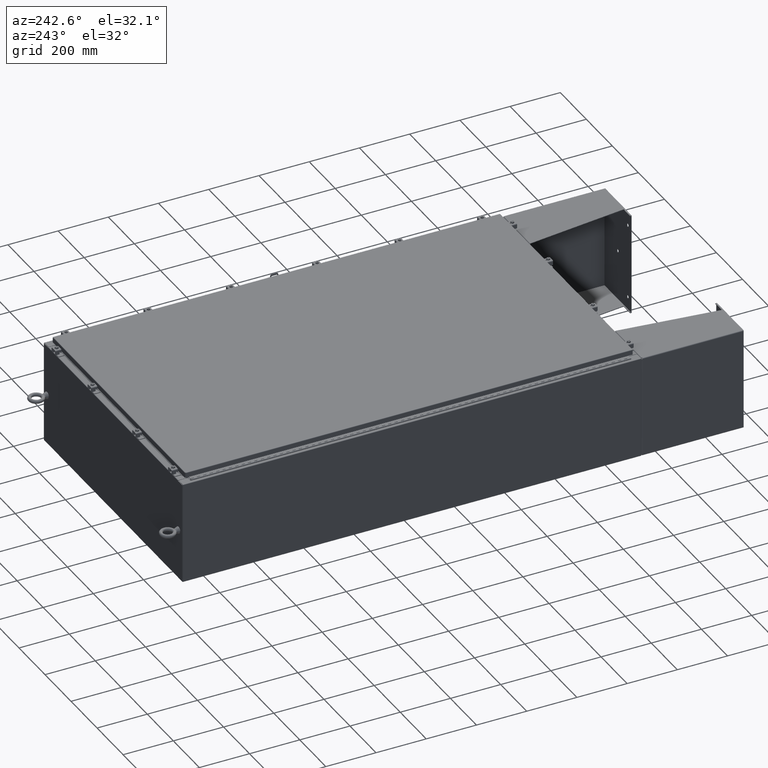
[diagram: clean part render]
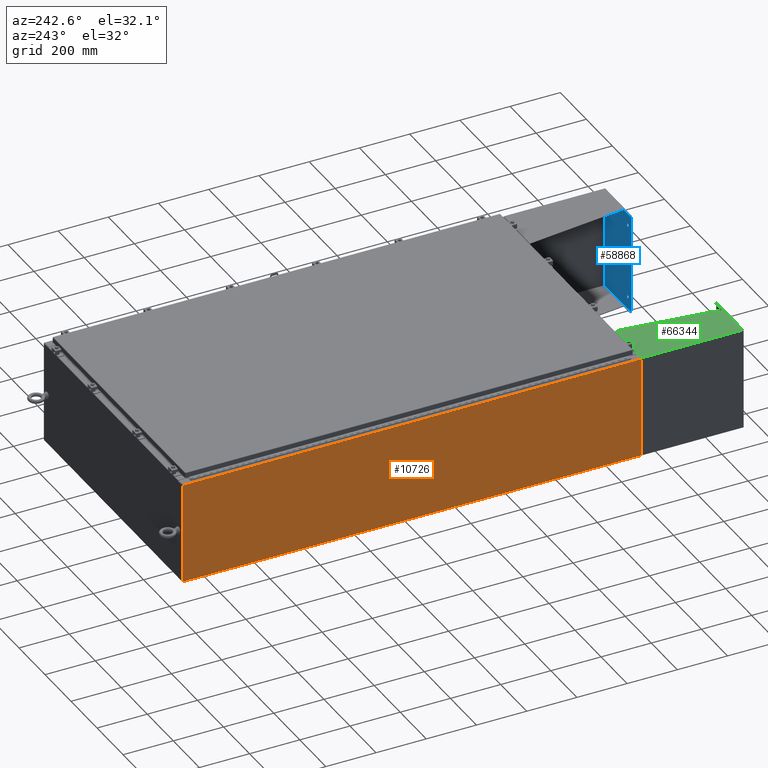
[diagram: same view with three faces highlighted in distinct colors, each labeled with its STEP entity id]
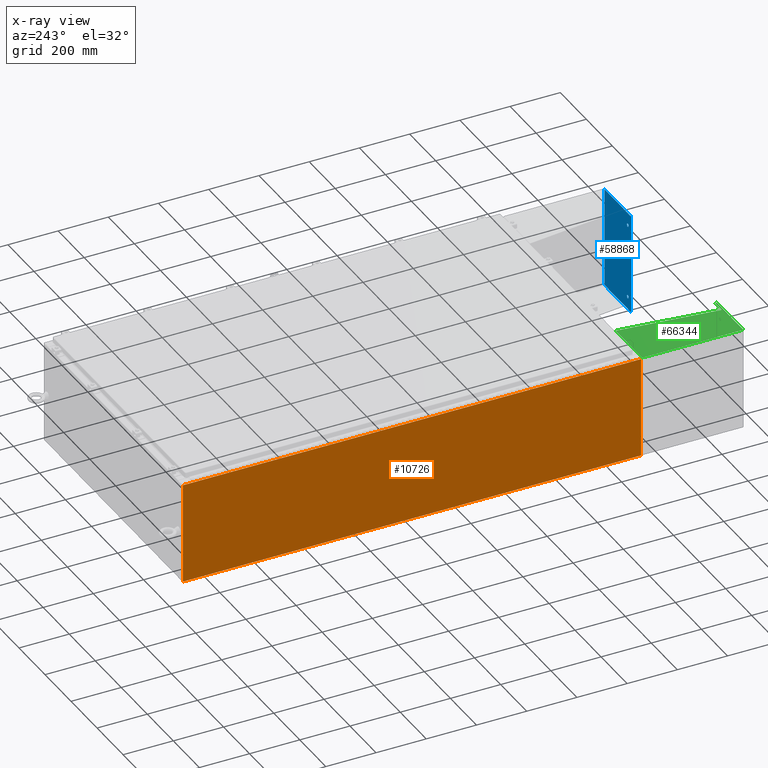
[diagram: x-ray of the same camera — body ghosted, the three highlighted faces saturated]
A machine part, auxiliary view with three faces highlighted in distinct colors.
The next image is the same camera in x-ray (body ghosted, the three faces saturated) — at least one of them is partly hidden behind the body in this view.
Their STEP definitions:

[orange] entity #10726 — the highlighted planar face has unit normal (1, 0, 0).
#34 = CARTESIAN_POINT ( 'NONE',  ( -21.00000000000005300, 35.92530000000000000, 15.83759999999999700 ) ) ;
#159 = CARTESIAN_POINT ( 'NONE',  ( -20.99999999999999600, 35.92530000000000000, -7.519008994170480900E-014 ) ) ;
#1633 = DIRECTION ( 'NONE',  ( -3.568060775509201500E-015, 0.0000000000000000000, 1.000000000000000000 ) ) ;
#2897 = EDGE_CURVE ( 'NONE', #52754, #73051, #76560, .T. ) ;
#3341 = CARTESIAN_POINT ( 'NONE',  ( -21.00000000000005700, -35.92530000000000000, 15.83759999999999700 ) ) ;
#4849 = EDGE_LOOP ( 'NONE', ( #34038, #58235, #11112, #47210 ) ) ;
#5665 = VECTOR ( 'NONE', #1633, 39.37007874015748100 ) ;
#7684 = CARTESIAN_POINT ( 'NONE',  ( -20.99999999999999600, -35.92529999999999300, -7.519008994170480900E-014 ) ) ;
#7936 = EDGE_CURVE ( 'NONE', #68617, #73051, #31280, .T. ) ;
#9164 = DIRECTION ( 'NONE',  ( 3.568060775509201500E-015, 0.0000000000000000000, -1.000000000000000000 ) ) ;
#9719 = FACE_OUTER_BOUND ( 'NONE', #4849, .T. ) ;
#10726 = ADVANCED_FACE ( 'NONE', ( #9719 ), #58457, .F. ) ;
#11112 = ORIENTED_EDGE ( 'NONE', *, *, #2897, .F. ) ;
#12292 = CARTESIAN_POINT ( 'NONE',  ( -20.99999999999999600, 35.92530000000000000, 0.01299999999999766100 ) ) ;
#15548 = VECTOR ( 'NONE', #37843, 39.37007874015748100 ) ;
#18373 = VECTOR ( 'NONE', #44671, 39.37007874015748100 ) ;
#31280 = LINE ( 'NONE', #159, #15548 ) ;
#34038 = ORIENTED_EDGE ( 'NONE', *, *, #60671, .T. ) ;
#34056 = LINE ( 'NONE', #3341, #18373 ) ;
#35335 = CARTESIAN_POINT ( 'NONE',  ( -20.99999999999999600, 0.0000000000000000000, -7.519008994170480900E-014 ) ) ;
#37843 = DIRECTION ( 'NONE',  ( 3.568060775509201500E-015, -1.669686765996189800E-032, -1.000000000000000000 ) ) ;
#38567 = AXIS2_PLACEMENT_3D ( 'NONE', #35335, #66264, #9164 ) ;
#39975 = CARTESIAN_POINT ( 'NONE',  ( -21.00000000000005700, -35.92530000000000000, 15.83759999999999700 ) ) ;
#44671 = DIRECTION ( 'NONE',  ( 0.0000000000000000000, 1.000000000000000000, 0.0000000000000000000 ) ) ;
#45019 = VECTOR ( 'NONE', #54582, 39.37007874015748100 ) ;
#47210 = ORIENTED_EDGE ( 'NONE', *, *, #62614, .T. ) ;
#52754 = VERTEX_POINT ( 'NONE', #60445 ) ;
#54582 = DIRECTION ( 'NONE',  ( -7.711494716726880800E-046, 1.000000000000000000, -2.692453989803932300E-060 ) ) ;
#58235 = ORIENTED_EDGE ( 'NONE', *, *, #7936, .T. ) ;
#58457 = PLANE ( 'NONE',  #38567 ) ;
#60445 = CARTESIAN_POINT ( 'NONE',  ( -20.99999999999999600, -35.92530000000000000, 0.01299999999999766100 ) ) ;
#60671 = EDGE_CURVE ( 'NONE', #68451, #68617, #34056, .T. ) ;
#62614 = EDGE_CURVE ( 'NONE', #52754, #68451, #72164, .T. ) ;
#66013 = CARTESIAN_POINT ( 'NONE',  ( -20.99999999999999600, 35.92530000000000000, 0.01299999999999765100 ) ) ;
#66264 = DIRECTION ( 'NONE',  ( 1.000000000000000000, 7.711494716726880800E-046, 3.568060775509201500E-015 ) ) ;
#68451 = VERTEX_POINT ( 'NONE', #39975 ) ;
#68617 = VERTEX_POINT ( 'NONE', #34 ) ;
#72164 = LINE ( 'NONE', #7684, #5665 ) ;
#73051 = VERTEX_POINT ( 'NONE', #66013 ) ;
#76560 = LINE ( 'NONE', #12292, #45019 ) ;

[blue] entity #58868 — the highlighted planar face has unit normal (0, -1, 0).
#666 = CARTESIAN_POINT ( 'NONE',  ( 0.0000000000000000000, 0.0000000000000000000, 0.0000000000000000000 ) ) ;
#731 = CARTESIAN_POINT ( 'NONE',  ( -7.878999999999998700, -4.000000000000000000, 0.0000000000000000000 ) ) ;
#1336 = DIRECTION ( 'NONE',  ( 0.0000000000000000000, 0.0000000000000000000, 1.000000000000000000 ) ) ;
#2622 = CARTESIAN_POINT ( 'NONE',  ( -5.878999999999999600, -2.999999999999999600, 0.0000000000000000000 ) ) ;
#2763 = ORIENTED_EDGE ( 'NONE', *, *, #43215, .T. ) ;
#2867 = FACE_BOUND ( 'NONE', #74933, .T. ) ;
#3970 = VERTEX_POINT ( 'NONE', #51483 ) ;
#4744 = FACE_BOUND ( 'NONE', #50433, .T. ) ;
#6717 = VECTOR ( 'NONE', #65106, 39.37007874015748100 ) ;
#6781 = DIRECTION ( 'NONE',  ( 1.000000000000000000, 0.0000000000000000000, 0.0000000000000000000 ) ) ;
#8661 = DIRECTION ( 'NONE',  ( 1.000000000000000000, 0.0000000000000000000, 0.0000000000000000000 ) ) ;
#9788 = AXIS2_PLACEMENT_3D ( 'NONE', #15828, #56906, #21744 ) ;
#10513 = CARTESIAN_POINT ( 'NONE',  ( -7.878999999999998700, -4.000000000000000000, 0.0000000000000000000 ) ) ;
#11300 = VERTEX_POINT ( 'NONE', #69949 ) ;
#11341 = CIRCLE ( 'NONE', #19306, 0.2499999999999998100 ) ;
#12087 = ORIENTED_EDGE ( 'NONE', *, *, #44268, .T. ) ;
#12372 = LINE ( 'NONE', #13626, #75234 ) ;
#13269 = ORIENTED_EDGE ( 'NONE', *, *, #61399, .T. ) ;
#13472 = CIRCLE ( 'NONE', #39498, 0.2500000000000000000 ) ;
#13626 = CARTESIAN_POINT ( 'NONE',  ( 7.879000000000000400, -4.000000000000000000, 0.0000000000000000000 ) ) ;
#14296 = PLANE ( 'NONE',  #57961 ) ;
#14550 = CARTESIAN_POINT ( 'NONE',  ( 7.879000000000000400, 4.000000000000000000, 0.0000000000000000000 ) ) ;
#15828 = CARTESIAN_POINT ( 'NONE',  ( 5.878999999999999600, -2.999999999999999600, 0.0000000000000000000 ) ) ;
#18682 = FACE_OUTER_BOUND ( 'NONE', #61362, .T. ) ;
#19276 = CARTESIAN_POINT ( 'NONE',  ( -5.628999999999999600, -2.999999999999999600, 0.0000000000000000000 ) ) ;
#19306 = AXIS2_PLACEMENT_3D ( 'NONE', #2622, #43949, #8661 ) ;
#19327 = DIRECTION ( 'NONE',  ( 0.0000000000000000000, 1.000000000000000000, 0.0000000000000000000 ) ) ;
#20724 = VECTOR ( 'NONE', #69520, 39.37007874015748100 ) ;
#20740 = AXIS2_PLACEMENT_3D ( 'NONE', #36788, #1336, #42716 ) ;
#21744 = DIRECTION ( 'NONE',  ( -1.000000000000000000, 0.0000000000000000000, 0.0000000000000000000 ) ) ;
#22407 = LINE ( 'NONE', #23912, #6717 ) ;
#22911 = ORIENTED_EDGE ( 'NONE', *, *, #72564, .F. ) ;
#23594 = CIRCLE ( 'NONE', #9788, 0.2499999999999998100 ) ;
#23912 = CARTESIAN_POINT ( 'NONE',  ( -7.878999999999998700, 4.000000000000000000, 0.0000000000000000000 ) ) ;
#25947 = CARTESIAN_POINT ( 'NONE',  ( 7.879000000000000400, 4.000000000000000000, 0.0000000000000000000 ) ) ;
#26374 = DIRECTION ( 'NONE',  ( 0.0000000000000000000, 0.0000000000000000000, -1.000000000000000000 ) ) ;
#27373 = VERTEX_POINT ( 'NONE', #56589 ) ;
#27817 = EDGE_LOOP ( 'NONE', ( #32638, #59946 ) ) ;
#28315 = VERTEX_POINT ( 'NONE', #53387 ) ;
#30327 = CARTESIAN_POINT ( 'NONE',  ( 5.878999999999999600, -2.999999999999999600, 0.0000000000000000000 ) ) ;
#30939 = VERTEX_POINT ( 'NONE', #25947 ) ;
#32638 = ORIENTED_EDGE ( 'NONE', *, *, #69680, .F. ) ;
#33133 = CARTESIAN_POINT ( 'NONE',  ( 0.0000000000000000000, 0.0000000000000000000, 0.0000000000000000000 ) ) ;
#34371 = FACE_BOUND ( 'NONE', #27817, .T. ) ;
#36223 = DIRECTION ( 'NONE',  ( -1.000000000000000000, 0.0000000000000000000, 0.0000000000000000000 ) ) ;
#36788 = CARTESIAN_POINT ( 'NONE',  ( -5.878999999999999600, -2.999999999999999600, 0.0000000000000000000 ) ) ;
#38886 = VERTEX_POINT ( 'NONE', #41150 ) ;
#39004 = DIRECTION ( 'NONE',  ( 1.000000000000000000, 0.0000000000000000000, 0.0000000000000000000 ) ) ;
#39498 = AXIS2_PLACEMENT_3D ( 'NONE', #33133, #74445, #39004 ) ;
#39900 = ORIENTED_EDGE ( 'NONE', *, *, #71882, .T. ) ;
#41150 = CARTESIAN_POINT ( 'NONE',  ( 5.628999999999999600, -2.999999999999999600, 0.0000000000000000000 ) ) ;
#42071 = DIRECTION ( 'NONE',  ( 0.0000000000000000000, 0.0000000000000000000, 1.000000000000000000 ) ) ;
#42716 = DIRECTION ( 'NONE',  ( 1.000000000000000000, 0.0000000000000000000, 0.0000000000000000000 ) ) ;
#43215 = EDGE_CURVE ( 'NONE', #38886, #74169, #75458, .T. ) ;
#43485 = EDGE_CURVE ( 'NONE', #11300, #66593, #13472, .T. ) ;
#43949 = DIRECTION ( 'NONE',  ( 0.0000000000000000000, 0.0000000000000000000, 1.000000000000000000 ) ) ;
#44268 = EDGE_CURVE ( 'NONE', #53674, #3970, #67761, .T. ) ;
#44917 = AXIS2_PLACEMENT_3D ( 'NONE', #30327, #71581, #36223 ) ;
#45233 = AXIS2_PLACEMENT_3D ( 'NONE', #666, #42071, #6781 ) ;
#45839 = DIRECTION ( 'NONE',  ( -0.0000000000000000000, -1.000000000000000000, -0.0000000000000000000 ) ) ;
#49279 = VERTEX_POINT ( 'NONE', #19276 ) ;
#50433 = EDGE_LOOP ( 'NONE', ( #22911, #76627 ) ) ;
#51483 = CARTESIAN_POINT ( 'NONE',  ( 7.879000000000000400, -4.000000000000000000, 0.0000000000000000000 ) ) ;
#53387 = CARTESIAN_POINT ( 'NONE',  ( -6.128999999999998700, -2.999999999999999600, 0.0000000000000000000 ) ) ;
#53674 = VERTEX_POINT ( 'NONE', #731 ) ;
#53797 = CIRCLE ( 'NONE', #20740, 0.2499999999999998100 ) ;
#53896 = CARTESIAN_POINT ( 'NONE',  ( 6.128999999999998700, -2.999999999999999600, 0.0000000000000000000 ) ) ;
#56589 = CARTESIAN_POINT ( 'NONE',  ( -7.878999999999998700, 4.000000000000000000, 0.0000000000000000000 ) ) ;
#56906 = DIRECTION ( 'NONE',  ( -0.0000000000000000000, -0.0000000000000000000, -1.000000000000000000 ) ) ;
#57961 = AXIS2_PLACEMENT_3D ( 'NONE', #14550, #26374, #67636 ) ;
#58868 = ADVANCED_FACE ( 'NONE', ( #18682, #34371, #4744, #2867 ), #14296, .F. ) ;
#59946 = ORIENTED_EDGE ( 'NONE', *, *, #43485, .F. ) ;
#60515 = LINE ( 'NONE', #10513, #74600 ) ;
#61362 = EDGE_LOOP ( 'NONE', ( #39900, #67231, #13269, #12087 ) ) ;
#61399 = EDGE_CURVE ( 'NONE', #27373, #53674, #60515, .T. ) ;
#64973 = EDGE_CURVE ( 'NONE', #28315, #49279, #53797, .T. ) ;
#65106 = DIRECTION ( 'NONE',  ( -1.000000000000000000, -0.0000000000000000000, -0.0000000000000000000 ) ) ;
#66085 = CIRCLE ( 'NONE', #45233, 0.2500000000000000000 ) ;
#66283 = ORIENTED_EDGE ( 'NONE', *, *, #70939, .T. ) ;
#66475 = EDGE_CURVE ( 'NONE', #30939, #27373, #22407, .T. ) ;
#66593 = VERTEX_POINT ( 'NONE', #72196 ) ;
#67231 = ORIENTED_EDGE ( 'NONE', *, *, #66475, .T. ) ;
#67636 = DIRECTION ( 'NONE',  ( -1.000000000000000000, 0.0000000000000000000, -0.0000000000000000000 ) ) ;
#67761 = LINE ( 'NONE', #75603, #20724 ) ;
#69520 = DIRECTION ( 'NONE',  ( 1.000000000000000000, 0.0000000000000000000, 0.0000000000000000000 ) ) ;
#69680 = EDGE_CURVE ( 'NONE', #66593, #11300, #66085, .T. ) ;
#69949 = CARTESIAN_POINT ( 'NONE',  ( -0.2500000000000000000, 3.061616997868383000E-017, 0.0000000000000000000 ) ) ;
#70939 = EDGE_CURVE ( 'NONE', #74169, #38886, #23594, .T. ) ;
#71581 = DIRECTION ( 'NONE',  ( -0.0000000000000000000, -0.0000000000000000000, -1.000000000000000000 ) ) ;
#71882 = EDGE_CURVE ( 'NONE', #3970, #30939, #12372, .T. ) ;
#72196 = CARTESIAN_POINT ( 'NONE',  ( 0.2500000000000000000, 0.0000000000000000000, 0.0000000000000000000 ) ) ;
#72564 = EDGE_CURVE ( 'NONE', #49279, #28315, #11341, .T. ) ;
#74169 = VERTEX_POINT ( 'NONE', #53896 ) ;
#74445 = DIRECTION ( 'NONE',  ( 0.0000000000000000000, 0.0000000000000000000, 1.000000000000000000 ) ) ;
#74600 = VECTOR ( 'NONE', #45839, 39.37007874015748100 ) ;
#74933 = EDGE_LOOP ( 'NONE', ( #66283, #2763 ) ) ;
#75234 = VECTOR ( 'NONE', #19327, 39.37007874015748100 ) ;
#75458 = CIRCLE ( 'NONE', #44917, 0.2499999999999998100 ) ;
#75603 = CARTESIAN_POINT ( 'NONE',  ( -7.878999999999998700, -4.000000000000000000, 0.0000000000000000000 ) ) ;
#76627 = ORIENTED_EDGE ( 'NONE', *, *, #64973, .F. ) ;

[green] entity #66344 — the highlighted planar face has unit normal (0, 0, -1).
#1177 = VECTOR ( 'NONE', #33753, 39.37007874015748100 ) ;
#2406 = CARTESIAN_POINT ( 'NONE',  ( -8.000000000000026600, -7.750000000000000000, 8.001000000000006600 ) ) ;
#2491 = LINE ( 'NONE', #22344, #63348 ) ;
#4959 = LINE ( 'NONE', #40468, #1177 ) ;
#5180 = EDGE_CURVE ( 'NONE', #18636, #33733, #4959, .T. ) ;
#7876 = CARTESIAN_POINT ( 'NONE',  ( -8.000000000000012400, 7.857000000000001100, 0.03900000000000469100 ) ) ;
#9216 = ORIENTED_EDGE ( 'NONE', *, *, #5180, .F. ) ;
#9638 = VERTEX_POINT ( 'NONE', #23263 ) ;
#10175 = EDGE_CURVE ( 'NONE', #9638, #28700, #42991, .T. ) ;
#11644 = VECTOR ( 'NONE', #13291, 39.37007874015748100 ) ;
#13291 = DIRECTION ( 'NONE',  ( 0.0000000000000000000, 1.000000000000000000, 0.0000000000000000000 ) ) ;
#13798 = ORIENTED_EDGE ( 'NONE', *, *, #76117, .T. ) ;
#17624 = EDGE_CURVE ( 'NONE', #65429, #33733, #71969, .T. ) ;
#18616 = ORIENTED_EDGE ( 'NONE', *, *, #72504, .T. ) ;
#18636 = VERTEX_POINT ( 'NONE', #30718 ) ;
#22344 = CARTESIAN_POINT ( 'NONE',  ( -8.000000000000026600, -7.750000000000000000, 8.000999999999997700 ) ) ;
#22716 = VERTEX_POINT ( 'NONE', #71692 ) ;
#23263 = CARTESIAN_POINT ( 'NONE',  ( -8.000000000000026600, -7.999999999999999100, 8.000999999999997700 ) ) ;
#26277 = EDGE_LOOP ( 'NONE', ( #53316, #13798, #58759, #9216, #18616, #71774 ) ) ;
#28347 = PLANE ( 'NONE',  #39587 ) ;
#28700 = VERTEX_POINT ( 'NONE', #2406 ) ;
#28892 = VECTOR ( 'NONE', #49365, 39.37007874015748100 ) ;
#30718 = CARTESIAN_POINT ( 'NONE',  ( -7.999999999999999100, -7.999999999999999100, 0.03899999999999813300 ) ) ;
#31021 = CARTESIAN_POINT ( 'NONE',  ( -8.000000000000026600, 8.000000000000001800, 8.000999999999997700 ) ) ;
#33733 = VERTEX_POINT ( 'NONE', #7876 ) ;
#33753 = DIRECTION ( 'NONE',  ( 0.0000000000000000000, 1.000000000000000000, 0.0000000000000000000 ) ) ;
#34320 = CARTESIAN_POINT ( 'NONE',  ( -8.000000000000026600, 8.000000000000001800, 8.000999999999997700 ) ) ;
#34654 = CARTESIAN_POINT ( 'NONE',  ( -8.000000000000019500, -7.749999999999999100, 6.052216497445926700 ) ) ;
#35784 = VECTOR ( 'NONE', #69941, 39.37007874015748100 ) ;
#37886 = DIRECTION ( 'NONE',  ( 0.0000000000000000000, 0.0000000000000000000, -1.000000000000000000 ) ) ;
#39587 = AXIS2_PLACEMENT_3D ( 'NONE', #34320, #75678, #40189 ) ;
#40189 = DIRECTION ( 'NONE',  ( 3.550958521948298200E-015, 0.0000000000000000000, -1.000000000000000000 ) ) ;
#40468 = CARTESIAN_POINT ( 'NONE',  ( -7.999999999999999100, 8.000000000000001800, 0.03899999999999923000 ) ) ;
#42991 = LINE ( 'NONE', #31021, #11644 ) ;
#43453 = CARTESIAN_POINT ( 'NONE',  ( -8.000000000000026600, -7.999999999999999100, 8.000999999999997700 ) ) ;
#45498 = FACE_OUTER_BOUND ( 'NONE', #26277, .T. ) ;
#47034 = CARTESIAN_POINT ( 'NONE',  ( -8.000000000000026600, 7.857000000000001100, 8.000999999999997700 ) ) ;
#49365 = DIRECTION ( 'NONE',  ( -3.550958521948298200E-015, 0.0000000000000000000, 1.000000000000000000 ) ) ;
#51352 = LINE ( 'NONE', #34654, #35784 ) ;
#53316 = ORIENTED_EDGE ( 'NONE', *, *, #69067, .T. ) ;
#58759 = ORIENTED_EDGE ( 'NONE', *, *, #17624, .T. ) ;
#60084 = LINE ( 'NONE', #43453, #28892 ) ;
#60950 = CARTESIAN_POINT ( 'NONE',  ( -8.000000000000012400, 7.857000000000001100, 8.000999999999997700 ) ) ;
#63348 = VECTOR ( 'NONE', #69768, 39.37007874015748100 ) ;
#65429 = VERTEX_POINT ( 'NONE', #47034 ) ;
#66344 = ADVANCED_FACE ( 'NONE', ( #45498 ), #28347, .F. ) ;
#69067 = EDGE_CURVE ( 'NONE', #28700, #22716, #2491, .T. ) ;
#69768 = DIRECTION ( 'NONE',  ( 3.550958521948298200E-015, 0.0000000000000000000, -1.000000000000000000 ) ) ;
#69941 = DIRECTION ( 'NONE',  ( -4.399772607369800400E-016, 0.9922942345449394800, 0.1239038017531047900 ) ) ;
#70059 = VECTOR ( 'NONE', #37886, 39.37007874015748100 ) ;
#71692 = CARTESIAN_POINT ( 'NONE',  ( -8.000000000000019500, -7.750000000000000000, 6.052216497445926700 ) ) ;
#71774 = ORIENTED_EDGE ( 'NONE', *, *, #10175, .T. ) ;
#71969 = LINE ( 'NONE', #60950, #70059 ) ;
#72504 = EDGE_CURVE ( 'NONE', #18636, #9638, #60084, .T. ) ;
#75678 = DIRECTION ( 'NONE',  ( 1.000000000000000000, 0.0000000000000000000, 3.550958521948298200E-015 ) ) ;
#76117 = EDGE_CURVE ( 'NONE', #22716, #65429, #51352, .T. ) ;